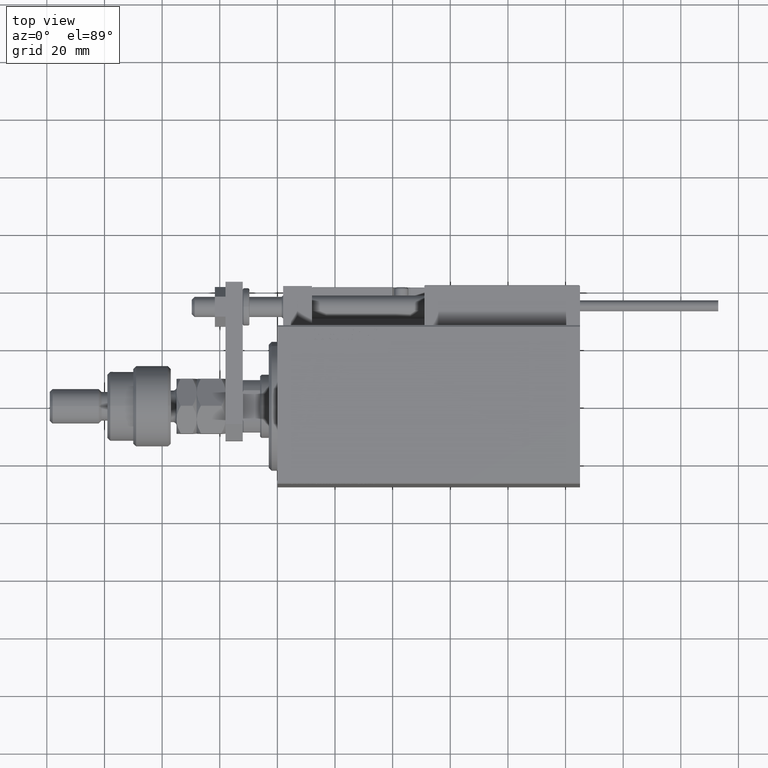
[diagram: clean part render]
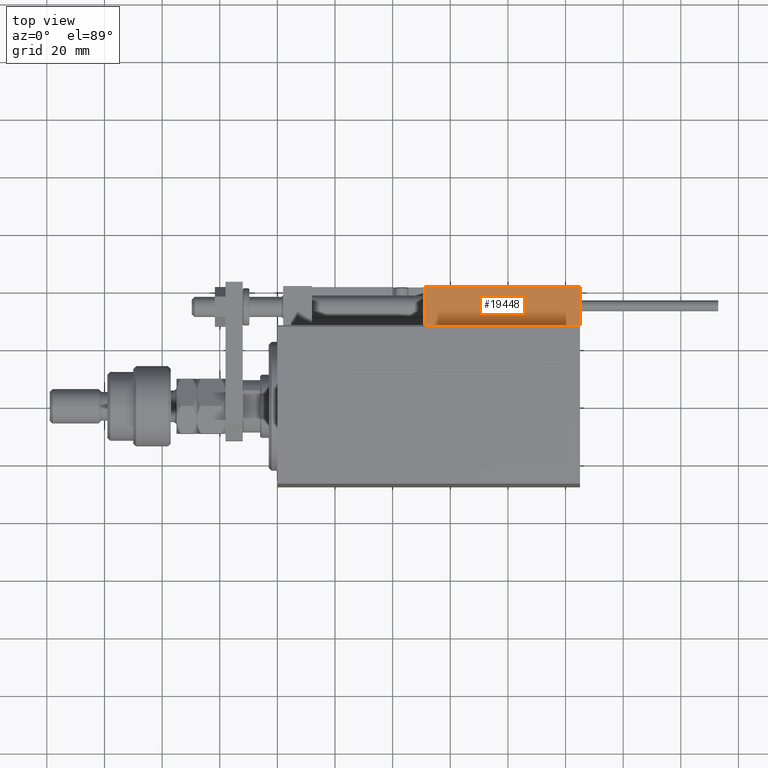
[diagram: same view with one face highlighted and labeled with its STEP entity id]
A machine part, top view. The second image highlights one B-rep face of the part: STEP entity #19448.
In plain terms, the highlighted planar face has unit normal (-0, -0, -1).
Its self-contained STEP definition (entity closure, byte-faithful):
#294 = EDGE_CURVE ( 'NONE', #15476, #40191, #28968, .T. ) ;
#1554 = VERTEX_POINT ( 'NONE', #47025 ) ;
#2234 = DIRECTION ( 'NONE',  ( 1.000000000000000000, -6.424901762877063495E-17, -0.000000000000000000 ) ) ;
#6455 = LINE ( 'NONE', #30426, #36579 ) ;
#6570 = CARTESIAN_POINT ( 'NONE',  ( -26.99999999999993605, 20.00000000000002132, 0.000000000000000000 ) ) ;
#8027 = EDGE_CURVE ( 'NONE', #11208, #1554, #9963, .T. ) ;
#8744 = DIRECTION ( 'NONE',  ( -1.000000000000000000, 6.424901762877062263E-17, 0.000000000000000000 ) ) ;
#9963 = LINE ( 'NONE', #38727, #28579 ) ;
#10020 = ORIENTED_EDGE ( 'NONE', *, *, #8027, .T. ) ;
#10831 = LINE ( 'NONE', #11099, #47619 ) ;
#11099 = CARTESIAN_POINT ( 'NONE',  ( -26.99999999999993605, 20.00000000000002132, 14.00000000000000000 ) ) ;
#11208 = VERTEX_POINT ( 'NONE', #23185 ) ;
#12281 = VECTOR ( 'NONE', #8744, 1000.000000000000000 ) ;
#15476 = VERTEX_POINT ( 'NONE', #37637 ) ;
#15990 = EDGE_CURVE ( 'NONE', #11208, #40191, #10831, .T. ) ;
#16325 = ORIENTED_EDGE ( 'NONE', *, *, #52148, .T. ) ;
#19448 = ADVANCED_FACE ( 'NONE', ( #48000 ), #52280, .F. ) ;
#20266 = DIRECTION ( 'NONE',  ( 1.000000000000000000, -6.424901762877063495E-17, 0.000000000000000000 ) ) ;
#23185 = CARTESIAN_POINT ( 'NONE',  ( -26.99999999999993605, 20.00000000000002132, 13.70000000000000107 ) ) ;
#28579 = VECTOR ( 'NONE', #2234, 1000.000000000000000 ) ;
#28968 = LINE ( 'NONE', #45252, #12281 ) ;
#30071 = EDGE_LOOP ( 'NONE', ( #47704, #10020, #16325, #30400 ) ) ;
#30400 = ORIENTED_EDGE ( 'NONE', *, *, #294, .T. ) ;
#30426 = CARTESIAN_POINT ( 'NONE',  ( 27.00000000000006395, 20.00000000000001776, 14.00000000000000000 ) ) ;
#36579 = VECTOR ( 'NONE', #46452, 1000.000000000000000 ) ;
#37637 = CARTESIAN_POINT ( 'NONE',  ( 27.00000000000006395, 20.00000000000001776, 0.000000000000000000 ) ) ;
#38727 = CARTESIAN_POINT ( 'NONE',  ( 27.00000000000006395, 20.00000000000001776, 13.70000000000000107 ) ) ;
#39986 = CARTESIAN_POINT ( 'NONE',  ( 27.00000000000006395, 20.00000000000001776, 14.00000000000000000 ) ) ;
#40191 = VERTEX_POINT ( 'NONE', #6570 ) ;
#40814 = AXIS2_PLACEMENT_3D ( 'NONE', #39986, #41033, #20266 ) ;
#41033 = DIRECTION ( 'NONE',  ( -6.424901762877063495E-17, -1.000000000000000000, 0.000000000000000000 ) ) ;
#43348 = DIRECTION ( 'NONE',  ( -0.000000000000000000, -0.000000000000000000, -1.000000000000000000 ) ) ;
#45252 = CARTESIAN_POINT ( 'NONE',  ( 27.00000000000006395, 20.00000000000001776, 0.000000000000000000 ) ) ;
#46452 = DIRECTION ( 'NONE',  ( -0.000000000000000000, -0.000000000000000000, -1.000000000000000000 ) ) ;
#47025 = CARTESIAN_POINT ( 'NONE',  ( 27.00000000000006395, 20.00000000000001776, 13.70000000000000107 ) ) ;
#47619 = VECTOR ( 'NONE', #43348, 1000.000000000000000 ) ;
#47704 = ORIENTED_EDGE ( 'NONE', *, *, #15990, .F. ) ;
#48000 = FACE_OUTER_BOUND ( 'NONE', #30071, .T. ) ;
#52148 = EDGE_CURVE ( 'NONE', #1554, #15476, #6455, .T. ) ;
#52280 = PLANE ( 'NONE',  #40814 ) ;